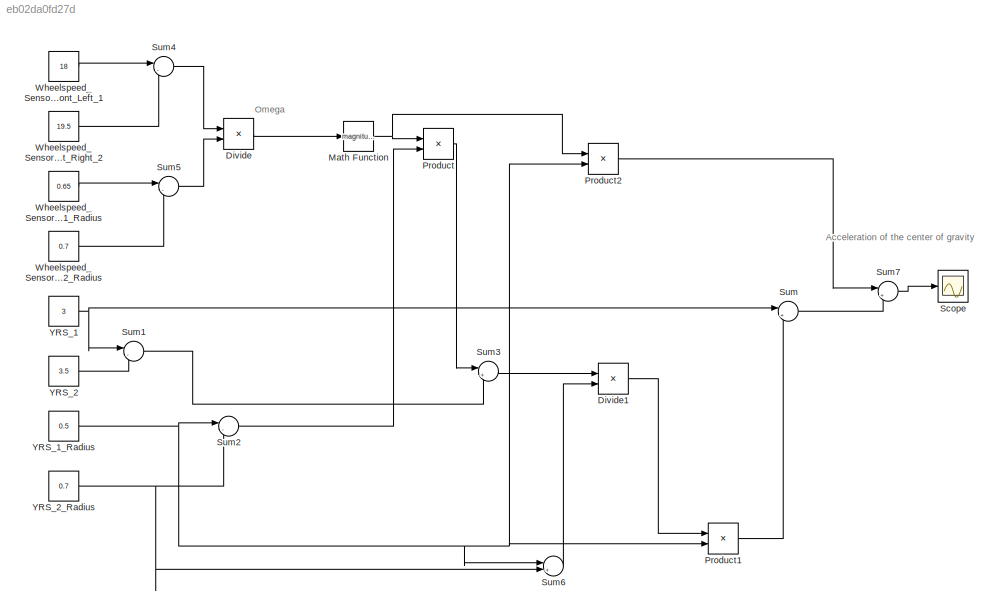
MODEL slx_eb02da0fd27d
KIND model
CONFIG AbsTol = auto
CONFIG FixedStep = auto
CONFIG MaxStep = auto
CONFIG MinStep = auto
CONFIG RelTol = 1e-3
CONFIG SampleTimeConstraint = Unconstrained
CONFIG Solver = VariableStepAuto
CONFIG SolverMode = Auto
CONFIG SolverName = VariableStepAuto
CONFIG StartTime = 0.0
CONFIG StopTime = 10.0
BLOCK [Product] Divide
  InputSameDT = off
  Inputs = */
  OutDataTypeStr = Inherit: Inherit via internal rule
  Ports = [2, 1]
  RndMeth = Floor
  SaturateOnIntegerOverflow = off
BLOCK [Product] Divide1
  InputSameDT = off
  Inputs = */
  OutDataTypeStr = Inherit: Inherit via internal rule
  Ports = [2, 1]
  RndMeth = Floor
  SaturateOnIntegerOverflow = off
BLOCK [Math] Math Function
  Operator = magnitude^2
  Ports = [1, 1]
BLOCK [Product] Product
  InputSameDT = off
  OutDataTypeStr = Inherit: Inherit via internal rule
  Ports = [2, 1]
  RndMeth = Floor
  SaturateOnIntegerOverflow = off
BLOCK [Product] Product1
  InputSameDT = off
  OutDataTypeStr = Inherit: Inherit via internal rule
  Ports = [2, 1]
  RndMeth = Floor
  SaturateOnIntegerOverflow = off
BLOCK [Product] Product2
  InputSameDT = off
  OutDataTypeStr = Inherit: Inherit via internal rule
  Ports = [2, 1]
  RndMeth = Floor
  SaturateOnIntegerOverflow = off
BLOCK [Scope] Scope
  Ports = [1]
  ScopeSpecificationString = Simulink.scopes.TimeScopeBlockCfg('CurrentConfiguration', extmgr.ConfigurationSet(extmgr.Configuration('Core','General UI',true),extmgr.Configuration('Core','Source UI',true),extmgr.Configuration('Sources','WiredSimulink',true),extmgr.Configuration('Visuals','Time Domain',true,'SerializedDisplays',{struct('MinYLimReal','1.74361','MaxYLimReal','1.75263','YLabelReal','','MinYLimMag','1.74361','MaxYL...<+1368ch>
BLOCK [Sum] Sum
  IconShape = round
  InputSameDT = off
  Inputs = |++
  OutDataTypeStr = Inherit: Inherit via internal rule
  Ports = [2, 1]
  SaturateOnIntegerOverflow = off
BLOCK [Sum] Sum1
  IconShape = round
  InputSameDT = off
  Inputs = |-+
  OutDataTypeStr = Inherit: Inherit via internal rule
  Ports = [2, 1]
  SaturateOnIntegerOverflow = off
BLOCK [Sum] Sum2
  IconShape = round
  InputSameDT = off
  Inputs = |-+
  OutDataTypeStr = Inherit: Inherit via internal rule
  Ports = [2, 1]
  SaturateOnIntegerOverflow = off
BLOCK [Sum] Sum3
  IconShape = round
  InputSameDT = off
  Inputs = |++
  OutDataTypeStr = Inherit: Inherit via internal rule
  Ports = [2, 1]
  SaturateOnIntegerOverflow = off
BLOCK [Sum] Sum4
  IconShape = round
  InputSameDT = off
  Inputs = |-+
  OutDataTypeStr = Inherit: Inherit via internal rule
  Ports = [2, 1]
  SaturateOnIntegerOverflow = off
BLOCK [Sum] Sum5
  IconShape = round
  InputSameDT = off
  Inputs = |-+
  OutDataTypeStr = Inherit: Inherit via internal rule
  Ports = [2, 1]
  SaturateOnIntegerOverflow = off
BLOCK [Sum] Sum6
  IconShape = round
  InputSameDT = off
  Inputs = |+-
  OutDataTypeStr = Inherit: Inherit via internal rule
  Ports = [2, 1]
  SaturateOnIntegerOverflow = off
BLOCK [Sum] Sum7
  IconShape = round
  InputSameDT = off
  Inputs = |++
  OutDataTypeStr = Inherit: Inherit via internal rule
  Ports = [2, 1]
  SaturateOnIntegerOverflow = off
BLOCK [Constant] Wheelspeed_Sensor_Front_Left_1
  Value = 18
BLOCK [Constant] Wheelspeed_Sensor_Front_Right_2
  Value = 19.5
BLOCK [Constant] Wheelspeed_Sensor_Front_Right_2_Radius
  Value = 0.7
BLOCK [Constant] Wheelspeed_Sensor_Front_left_1_Radius
  Value = 0.65
BLOCK [Constant] YRS_1 
  Value = 3
BLOCK [Constant] YRS_1_Radius
  Value = 0.5
BLOCK [Constant] YRS_2
  Value = 3.5
BLOCK [Constant] YRS_2_Radius
  Value = 0.7
ANNOTATION (root): Acceleration of the center of gravity
ANNOTATION (root): Omega
LINE Divide1:1 -> Product1:1
LINE Divide:1 -> Math Function:1
NET Math Function:1 -> Product2:1, Product:1
LINE Product1:1 -> Sum:2
LINE Product2:1 -> Sum7:1
LINE Product:1 -> Sum3:1
LINE Sum1:1 -> Sum3:2
LINE Sum2:1 -> Product:2
LINE Sum3:1 -> Divide1:1
LINE Sum4:1 -> Divide:1
LINE Sum5:1 -> Divide:2
LINE Sum6:1 -> Divide1:2
LINE Sum7:1 -> Scope:1
LINE Sum:1 -> Sum7:2
LINE Wheelspeed_Sensor_Front_Left_1:1 -> Sum4:1
LINE Wheelspeed_Sensor_Front_Right_2:1 -> Sum4:2
LINE Wheelspeed_Sensor_Front_Right_2_Radius:1 -> Sum5:2
LINE Wheelspeed_Sensor_Front_left_1_Radius:1 -> Sum5:1
NET YRS_1 :1 -> Sum1:1, Sum:1
NET YRS_1_Radius:1 -> Product1:2, Product2:2, Sum2:1, Sum6:1
LINE YRS_2:1 -> Sum1:2
NET YRS_2_Radius:1 -> Sum2:2, Sum6:2
note: NET lines group one-source signal fan-out (src -> all destinations, sorted); 1:1 wires keep LINE
